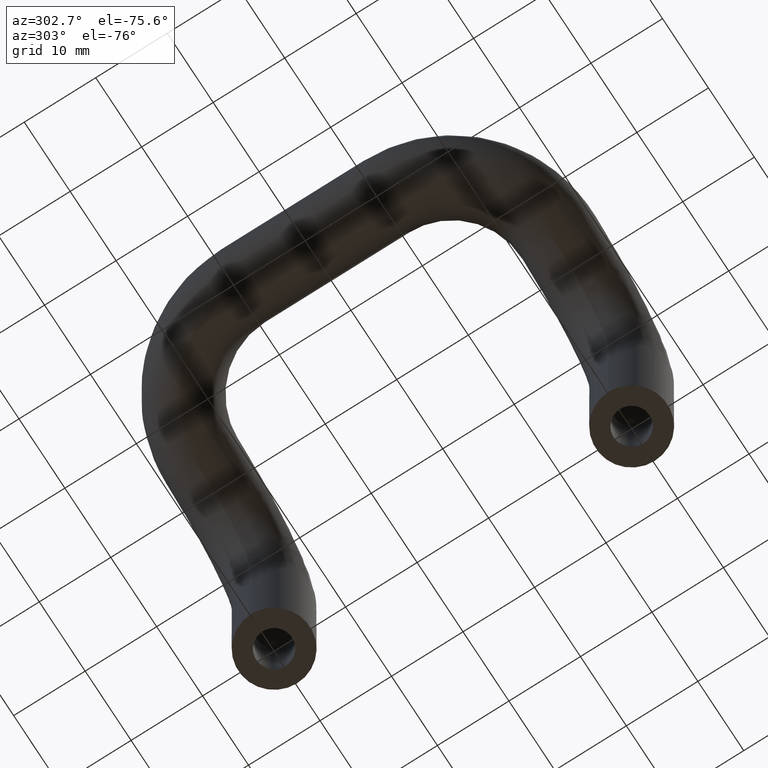
[diagram: clean part render]
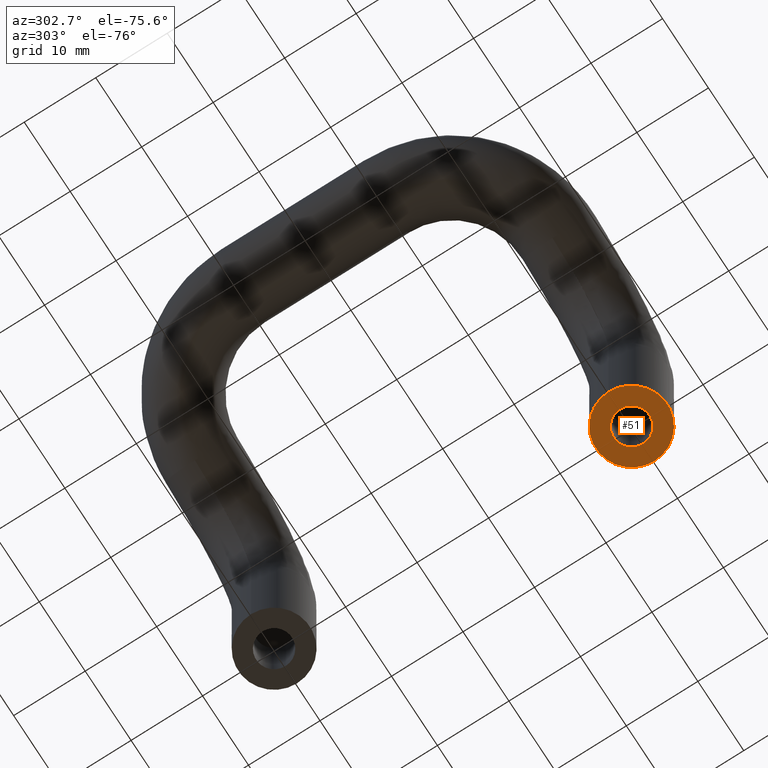
[diagram: same view with one face highlighted and labeled with its STEP entity id]
A machine part, auxiliary view. The second image highlights one B-rep face of the part: STEP entity #51.
In plain terms, the highlighted planar face has unit normal (0, 0, -1).
Its self-contained STEP definition (entity closure, byte-faithful):
#51=ADVANCED_FACE('',(#189,#190),#188,.T.);
#188=PLANE('',#713);
#189=FACE_OUTER_BOUND('',#714,.T.);
#190=FACE_BOUND('',#715,.T.);
#710=CARTESIAN_POINT('',(1.15000000000E+01,-1.03923048454E+01,0.00000000000E+00));
#711=DIRECTION('',(0.00000000000E+00,0.00000000000E+00,-1.00000000000E+00));
#712=DIRECTION('',(-1.00000000000E+00,0.00000000000E+00,0.00000000000E+00));
#713=AXIS2_PLACEMENT_3D('',#710,#711,#712);
#714=EDGE_LOOP('',(#1120,#1121));
#715=EDGE_LOOP('',(#1122,#1123));
#1120=ORIENTED_EDGE('',*,*,#1298,.T.);
#1121=ORIENTED_EDGE('',*,*,#1299,.T.);
#1122=ORIENTED_EDGE('',*,*,#1300,.F.);
#1123=ORIENTED_EDGE('',*,*,#1301,.F.);
#1298=EDGE_CURVE('',#1598,#1599,#1600,.T.);
#1299=EDGE_CURVE('',#1599,#1598,#1606,.T.);
#1300=EDGE_CURVE('',#1612,#1613,#1614,.T.);
#1301=EDGE_CURVE('',#1613,#1612,#1620,.T.);
#1598=VERTEX_POINT('',#2191);
#1599=VERTEX_POINT('',#2192);
#1600=CIRCLE('',#2196,5.00000000000E+00);
#1606=CIRCLE('',#2200,5.00000000000E+00);
#1612=VERTEX_POINT('',#2201);
#1613=VERTEX_POINT('',#2202);
#1614=CIRCLE('',#2206,2.50000000000E+00);
#1620=CIRCLE('',#2210,2.50000000000E+00);
#2191=CARTESIAN_POINT('',(-5.00000000000E+00,-8.50014503229E-14,0.00000000000E+00));
#2192=CARTESIAN_POINT('',(5.00000000000E+00,-8.49690688180E-14,0.00000000000E+00));
#2193=CARTESIAN_POINT('',(0.00000000000E+00,-8.50014503229E-14,0.00000000000E+00));
#2194=DIRECTION('',(-0.00000000000E+00,0.00000000000E+00,-1.00000000000E+00));
#2195=DIRECTION('',(-1.00000000000E+00,-1.22460635382E-16,0.00000000000E+00));
#2196=AXIS2_PLACEMENT_3D('',#2193,#2194,#2195);
#2197=CARTESIAN_POINT('',(0.00000000000E+00,-8.50014503229E-14,0.00000000000E+00));
#2198=DIRECTION('',(-0.00000000000E+00,0.00000000000E+00,-1.00000000000E+00));
#2199=DIRECTION('',(-1.00000000000E+00,-1.22460635382E-16,0.00000000000E+00));
#2200=AXIS2_PLACEMENT_3D('',#2197,#2198,#2199);
#2201=CARTESIAN_POINT('',(2.50000000000E+00,-8.51170985546E-14,-4.07211626342E-12));
#2202=CARTESIAN_POINT('',(-2.50000000000E+00,-8.52651282912E-14,-4.07211626342E-12));
#2203=CARTESIAN_POINT('',(0.00000000000E+00,-8.52651282912E-14,-4.07211626342E-12));
#2204=DIRECTION('',(-0.00000000000E+00,0.00000000000E+00,-1.00000000000E+00));
#2205=DIRECTION('',(-1.00000000000E+00,-1.22460635382E-16,0.00000000000E+00));
#2206=AXIS2_PLACEMENT_3D('',#2203,#2204,#2205);
#2207=CARTESIAN_POINT('',(0.00000000000E+00,-8.52651282912E-14,-4.07211626342E-12));
#2208=DIRECTION('',(-0.00000000000E+00,0.00000000000E+00,-1.00000000000E+00));
#2209=DIRECTION('',(-1.00000000000E+00,-1.22460635382E-16,0.00000000000E+00));
#2210=AXIS2_PLACEMENT_3D('',#2207,#2208,#2209);